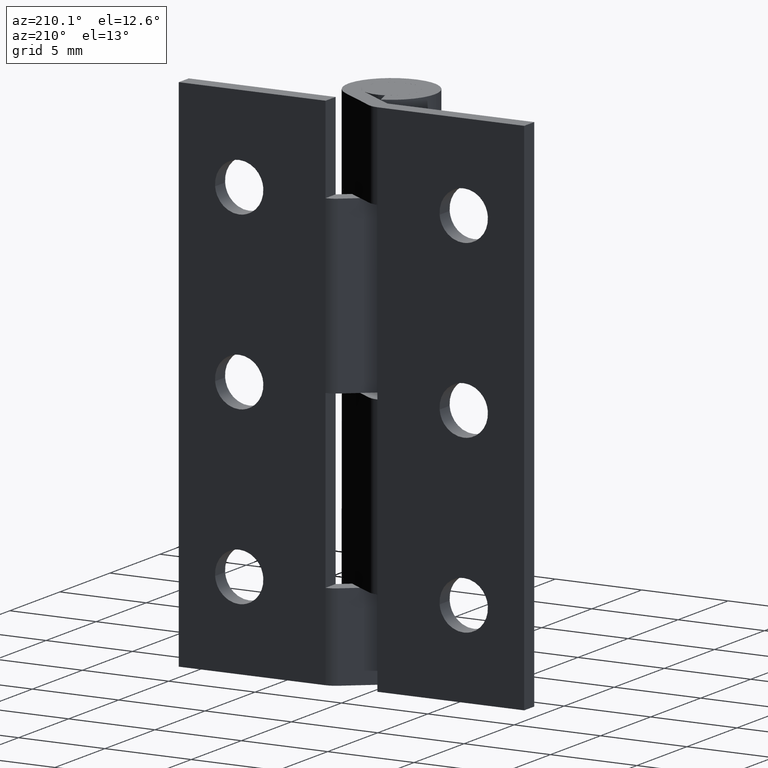
[diagram: clean part render]
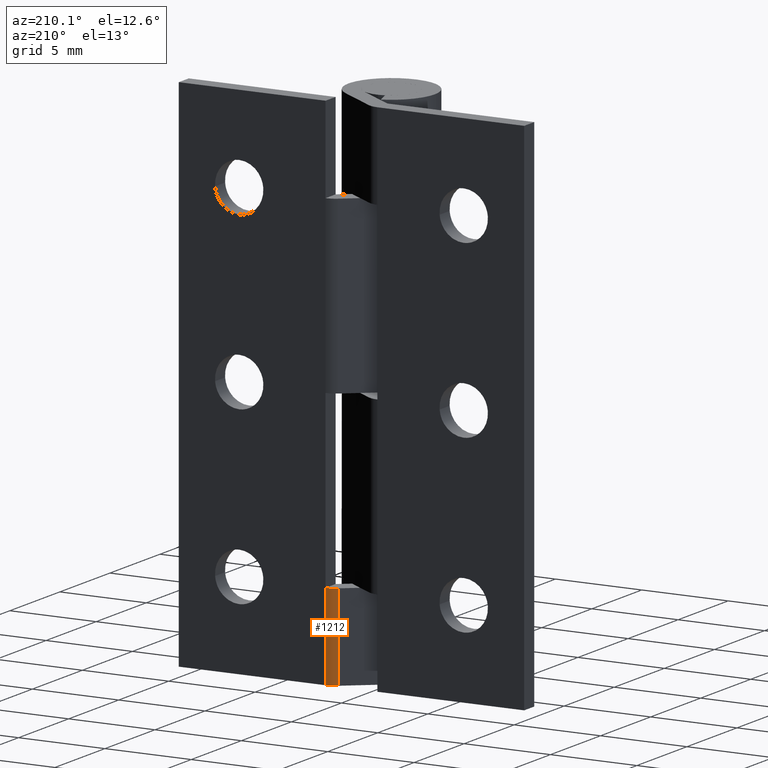
[diagram: same view with one face highlighted and labeled with its STEP entity id]
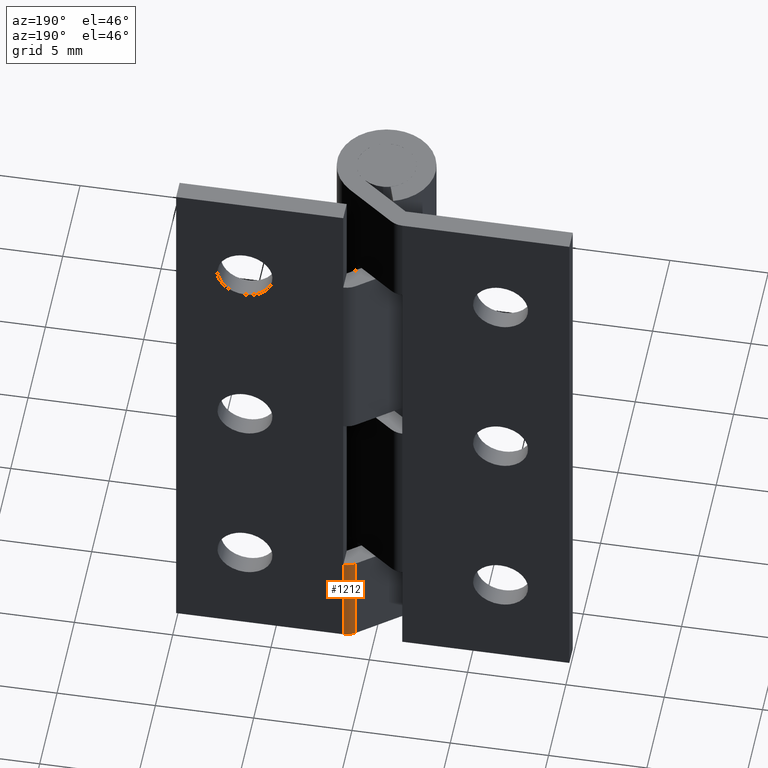
[diagram: same view with one face highlighted and labeled with its STEP entity id]
A machine part, auxiliary view. The second image highlights one B-rep face of the part: STEP entity #1212.
A second angle (auxiliary view) of the same face is appended — the face is thin or edge-on in the first view.
In plain terms, the highlighted face is a freeform B-spline surface patch.
Its self-contained STEP definition (entity closure, byte-faithful):
#1025=CARTESIAN_POINT('',(1.500003666665110,4.0,5.0));
#1026=VERTEX_POINT('',#1025);
#1032=CARTESIAN_POINT('',(0.900004253331041,3.800000439999130,5.0));
#1033=VERTEX_POINT('',#1032);
#1034=CARTESIAN_POINT('',(1.500003666665110,4.0,5.0));
#1035=CARTESIAN_POINT('',(1.166670740738516,4.0,5.0));
#1036=CARTESIAN_POINT('',(0.900004253331041,3.800000439999130,5.0));
#1044=(BOUNDED_CURVE()B_SPLINE_CURVE(2,(#1034,#1035,#1036),.UNSPECIFIED.,.F.,.U.)CURVE()GEOMETRIC_REPRESENTATION_ITEM()QUASI_UNIFORM_CURVE()RATIONAL_B_SPLINE_CURVE((1.0,0.948683414000455,1.0))REPRESENTATION_ITEM(''));
#1045=EDGE_CURVE('',#1026,#1033,#1044,.T.);
#1168=CARTESIAN_POINT('',(1.526180614972984,3.999657324975557,5.125000000000001));
#1169=CARTESIAN_POINT('',(1.526180614972984,3.999657324975557,-0.128125000000001));
#1170=CARTESIAN_POINT('',(1.160574153423192,4.009231067102888,5.125000000000001));
#1171=CARTESIAN_POINT('',(1.160574153423192,4.009231067102888,-0.128125000000001));
#1172=CARTESIAN_POINT('',(0.875058741531539,3.780668841795158,5.125000000000002));
#1173=CARTESIAN_POINT('',(0.875058741531539,3.780668841795158,-0.128125000000001));
#1181=(BOUNDED_SURFACE()B_SPLINE_SURFACE(1,2,((#1168,#1170,#1172),(#1169,#1171,#1173)),.UNSPECIFIED.,.F.,.F.,.U.)B_SPLINE_SURFACE_WITH_KNOTS((2,2),(3,3),(0.0,5.253125000000003),(0.0,0.979546778525226),.UNSPECIFIED.)GEOMETRIC_REPRESENTATION_ITEM()RATIONAL_B_SPLINE_SURFACE(((1.0,0.937967446987213,0.997462468909168),(1.0,0.937967446987213,0.997462468909168)))REPRESENTATION_ITEM('')SURFACE());
#1182=ORIENTED_EDGE('',*,*,#1045,.F.);
#1183=CARTESIAN_POINT('',(1.500003666665110,4.0,0.0));
#1184=VERTEX_POINT('',#1183);
#1185=CARTESIAN_POINT('',(1.500003666665110,4.0,0.0));
#1186=CARTESIAN_POINT('',(1.500003666665110,4.0,5.0));
#1187=QUASI_UNIFORM_CURVE('',1,(#1185,#1186),.UNSPECIFIED.,.F.,.U.);
#1188=EDGE_CURVE('',#1184,#1026,#1187,.T.);
#1189=ORIENTED_EDGE('',*,*,#1188,.F.);
#1190=CARTESIAN_POINT('',(0.900004253331041,3.800000439999130,0.0));
#1191=VERTEX_POINT('',#1190);
#1192=CARTESIAN_POINT('',(0.900004253331041,3.800000439999130,0.0));
#1193=CARTESIAN_POINT('',(1.166670740738517,4.000000000000001,0.0));
#1194=CARTESIAN_POINT('',(1.500003666665110,4.0,0.0));
#1202=(BOUNDED_CURVE()B_SPLINE_CURVE(2,(#1192,#1193,#1194),.UNSPECIFIED.,.F.,.U.)CURVE()GEOMETRIC_REPRESENTATION_ITEM()QUASI_UNIFORM_CURVE()RATIONAL_B_SPLINE_CURVE((1.0,0.948683414000455,1.0))REPRESENTATION_ITEM(''));
#1203=EDGE_CURVE('',#1191,#1184,#1202,.T.);
#1204=ORIENTED_EDGE('',*,*,#1203,.F.);
#1205=CARTESIAN_POINT('',(0.900004253331041,3.800000439999130,5.0));
#1206=CARTESIAN_POINT('',(0.900004253331041,3.800000439999130,0.0));
#1207=QUASI_UNIFORM_CURVE('',1,(#1205,#1206),.UNSPECIFIED.,.F.,.U.);
#1208=EDGE_CURVE('',#1033,#1191,#1207,.T.);
#1209=ORIENTED_EDGE('',*,*,#1208,.F.);
#1210=EDGE_LOOP('',(#1182,#1189,#1204,#1209));
#1211=FACE_OUTER_BOUND('',#1210,.T.);
#1212=ADVANCED_FACE('',(#1211),#1181,.T.);